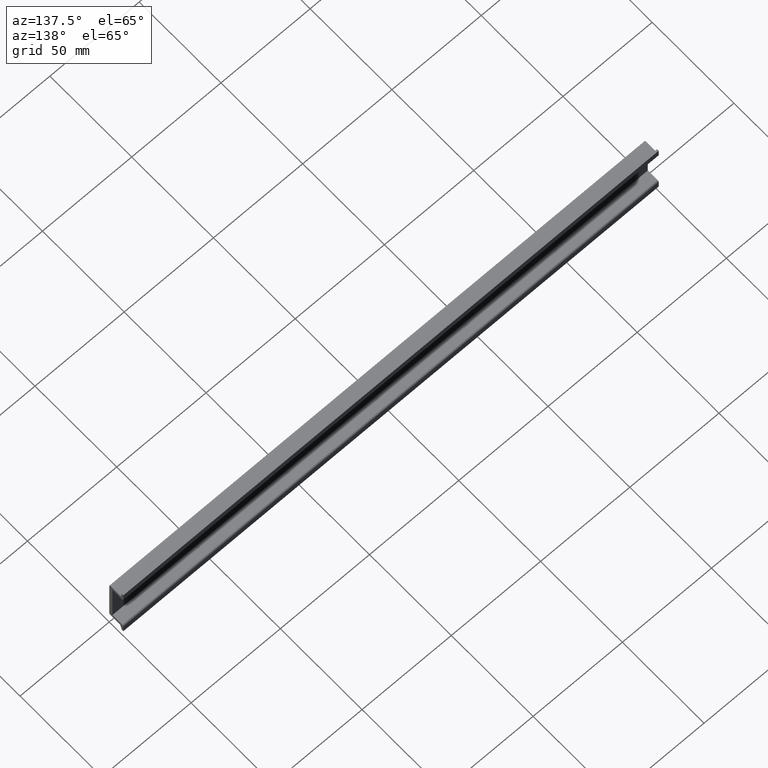
[diagram: clean part render]
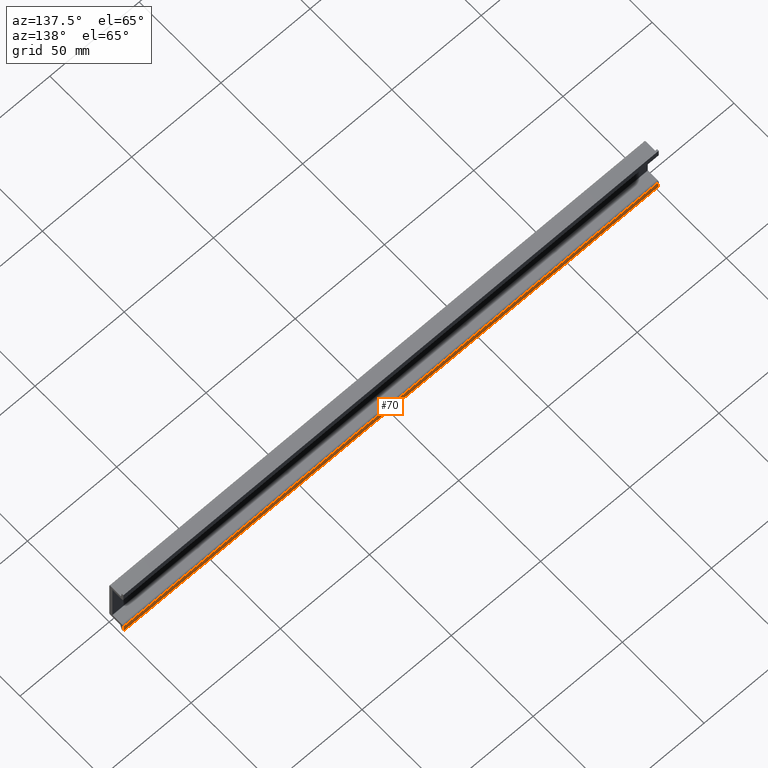
[diagram: same view with one face highlighted and labeled with its STEP entity id]
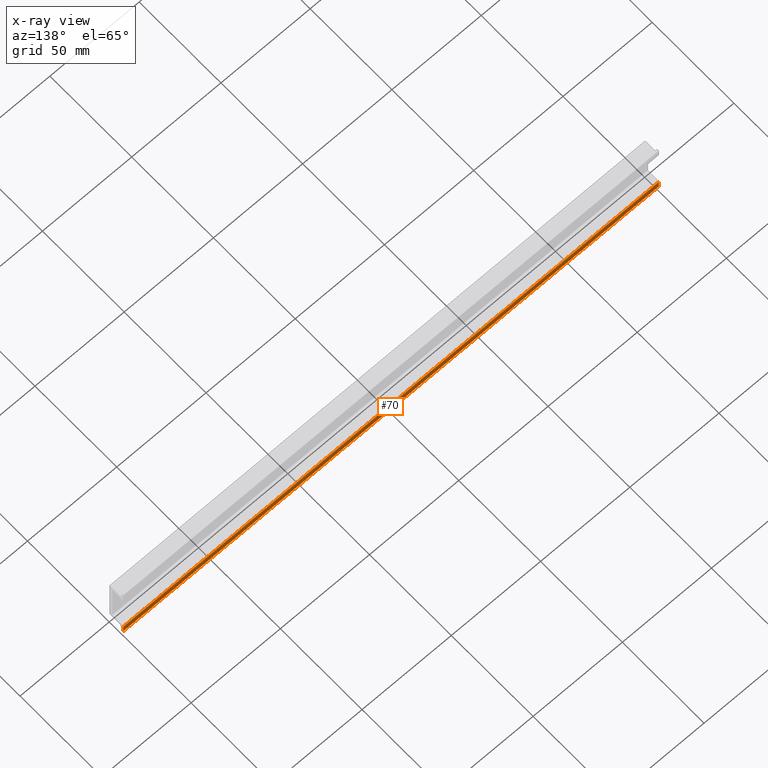
[diagram: x-ray of the same camera — body ghosted, the highlighted face saturated]
A machine part, auxiliary view. The second image highlights one B-rep face of the part: STEP entity #70.
The next image is the same camera in x-ray: the body ghosted, the highlighted face saturated — about 0% of this face is hidden behind the body in this view.
In plain terms, the highlighted planar face has unit normal (0, -1, 0).
Its self-contained STEP definition (entity closure, byte-faithful):
#8 = EDGE_CURVE ( 'NONE', #206, #232, #247, .T. ) ;
#9 = EDGE_CURVE ( 'NONE', #232, #197, #406, .T. ) ;
#22 = EDGE_CURVE ( 'NONE', #206, #236, #417, .T. ) ;
#39 = EDGE_CURVE ( 'NONE', #236, #197, #503, .T. ) ;
#70 = ADVANCED_FACE ( 'NONE', ( #558 ), #576, .F. ) ;
#108 = CARTESIAN_POINT ( 'NONE',  ( 0.0000000000000000000, 8.599999999999663900, -0.1000000000002111000 ) ) ;
#116 = CARTESIAN_POINT ( 'NONE',  ( 300.0000000000000000, 8.599999999999663900, -0.1000000000002111000 ) ) ;
#117 = CARTESIAN_POINT ( 'NONE',  ( 300.0000000000000000, 8.599999999999607100, -4.350000000000076000 ) ) ;
#127 = CARTESIAN_POINT ( 'NONE',  ( 0.0000000000000000000, 8.599999999999607100, -4.350000000000076000 ) ) ;
#197 = VERTEX_POINT ( 'NONE', #108 ) ;
#206 = VERTEX_POINT ( 'NONE', #117 ) ;
#232 = VERTEX_POINT ( 'NONE', #116 ) ;
#236 = VERTEX_POINT ( 'NONE', #127 ) ;
#245 = EDGE_LOOP ( 'NONE', ( #317, #273, #276, #274 ) ) ;
#246 = CARTESIAN_POINT ( 'NONE',  ( 300.0000000000000000, 8.599999999999607100, -0.1000000000002110300 ) ) ;
#247 = LINE ( 'NONE', #246, #670 ) ;
#265 = DIRECTION ( 'NONE',  ( -0.0000000000000000000, -0.0000000000000000000, 1.000000000000000000 ) ) ;
#273 = ORIENTED_EDGE ( 'NONE', *, *, #9, .F. ) ;
#274 = ORIENTED_EDGE ( 'NONE', *, *, #22, .T. ) ;
#276 = ORIENTED_EDGE ( 'NONE', *, *, #8, .F. ) ;
#317 = ORIENTED_EDGE ( 'NONE', *, *, #39, .T. ) ;
#369 = CARTESIAN_POINT ( 'NONE',  ( 300.0000000000000000, 8.599999999999663900, -0.1000000000002111000 ) ) ;
#378 = DIRECTION ( 'NONE',  ( -1.000000000000000000, -0.0000000000000000000, -0.0000000000000000000 ) ) ;
#406 = LINE ( 'NONE', #369, #669 ) ;
#417 = LINE ( 'NONE', #456, #699 ) ;
#431 = DIRECTION ( 'NONE',  ( -1.000000000000000000, -0.0000000000000000000, -0.0000000000000000000 ) ) ;
#456 = CARTESIAN_POINT ( 'NONE',  ( 300.0000000000000000, 8.599999999999607100, -4.350000000000076000 ) ) ;
#486 = CARTESIAN_POINT ( 'NONE',  ( 0.0000000000000000000, 8.599999999999607100, -0.1000000000002110300 ) ) ;
#488 = DIRECTION ( 'NONE',  ( -0.0000000000000000000, -0.0000000000000000000, 1.000000000000000000 ) ) ;
#503 = LINE ( 'NONE', #486, #701 ) ;
#558 = FACE_OUTER_BOUND ( 'NONE', #245, .T. ) ;
#567 = DIRECTION ( 'NONE',  ( 0.0000000000000000000, -1.000000000000000000, 0.0000000000000000000 ) ) ;
#573 = CARTESIAN_POINT ( 'NONE',  ( 300.0000000000000000, 8.599999999999607100, -0.1000000000002110300 ) ) ;
#576 = PLANE ( 'NONE',  #738 ) ;
#578 = DIRECTION ( 'NONE',  ( 0.0000000000000000000, -0.0000000000000000000, -1.000000000000000000 ) ) ;
#669 = VECTOR ( 'NONE', #378, 1000.000000000000000 ) ;
#670 = VECTOR ( 'NONE', #265, 1000.000000000000000 ) ;
#699 = VECTOR ( 'NONE', #431, 1000.000000000000000 ) ;
#701 = VECTOR ( 'NONE', #488, 1000.000000000000000 ) ;
#738 = AXIS2_PLACEMENT_3D ( 'NONE', #573, #567, #578 ) ;